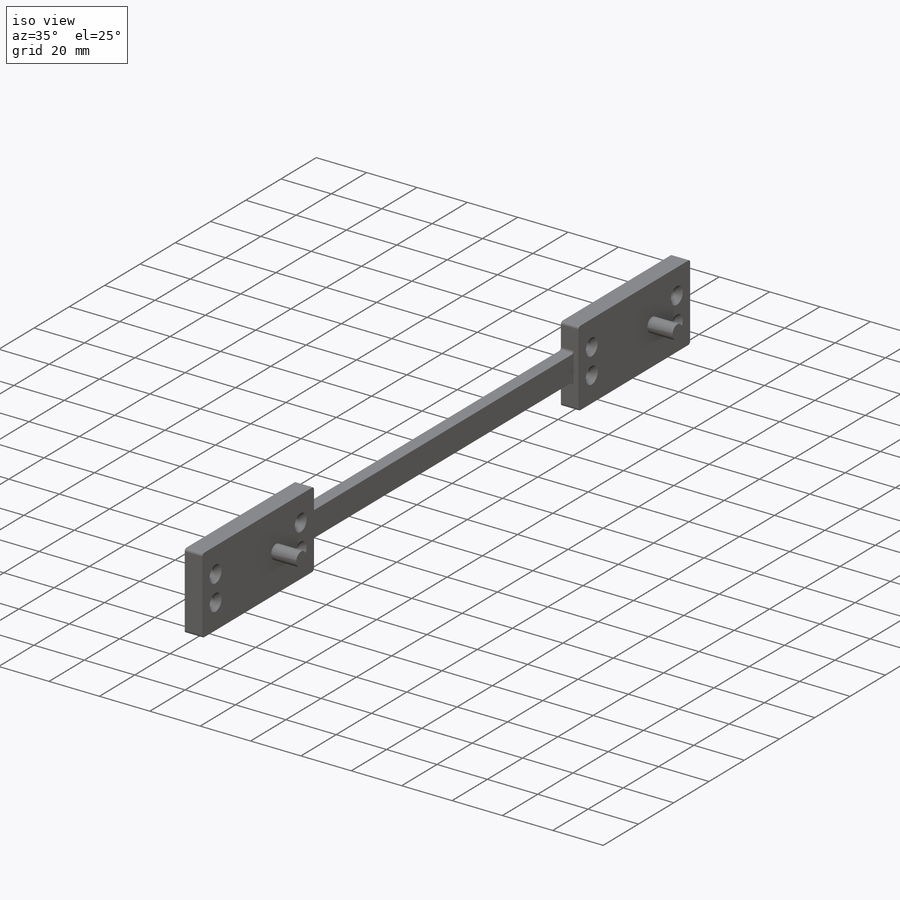
[diagram: iso view]
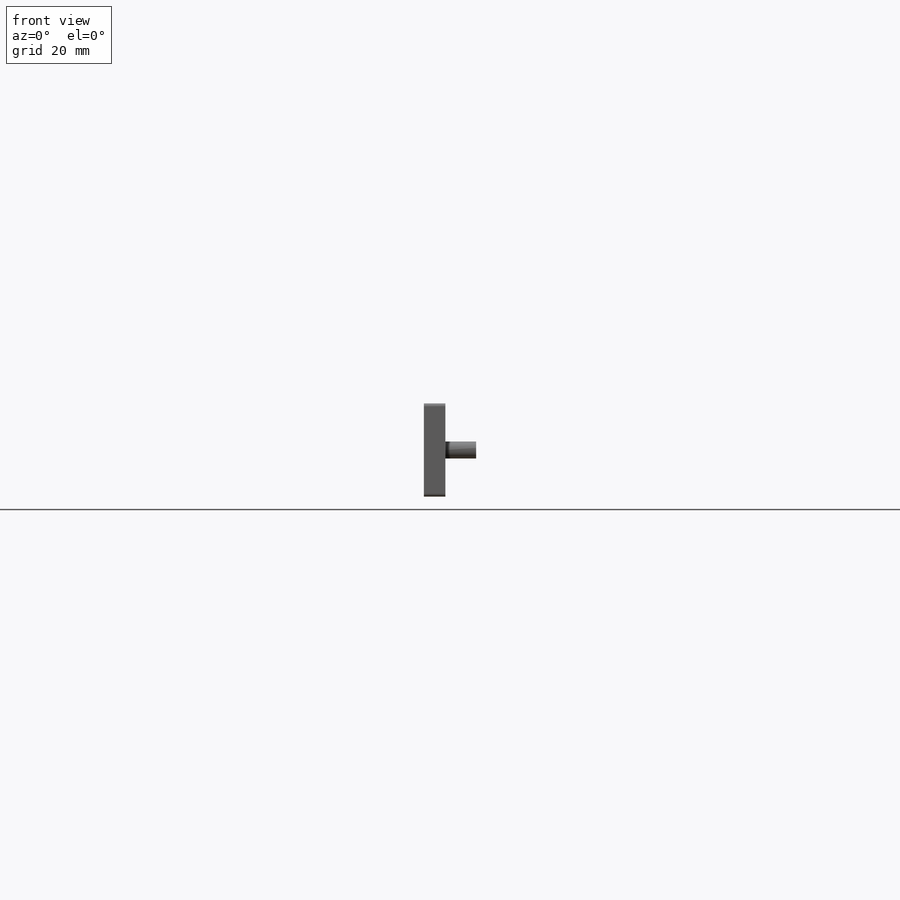
[diagram: front view]
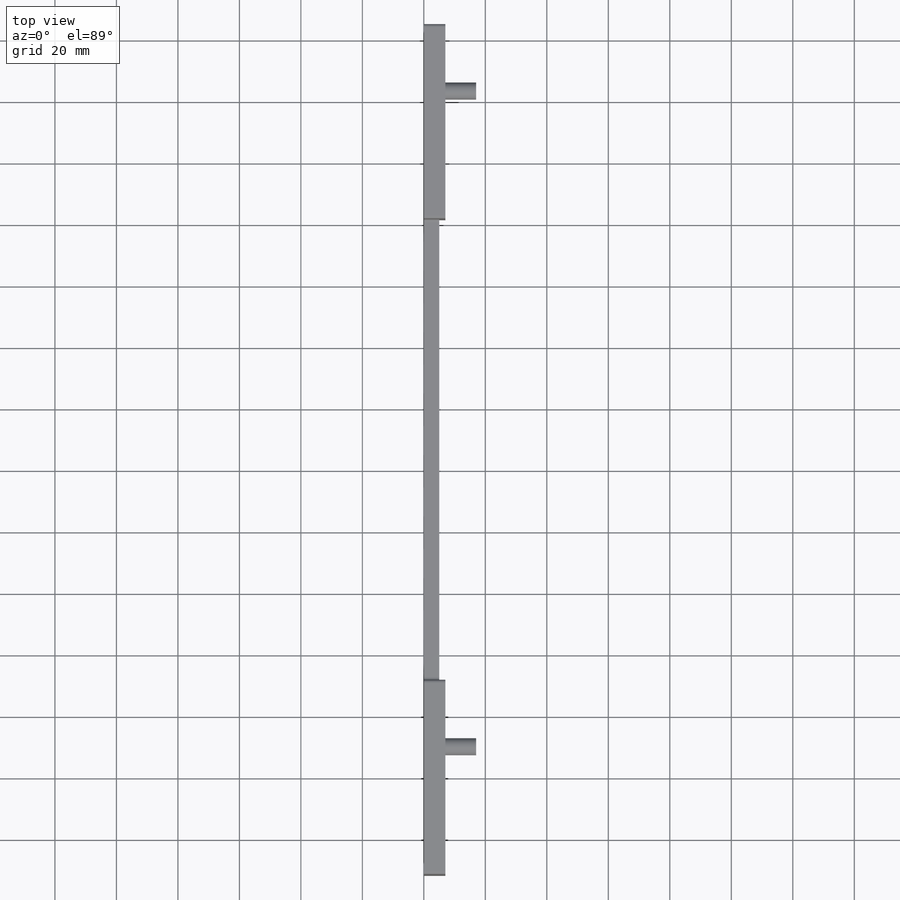
[diagram: top view]
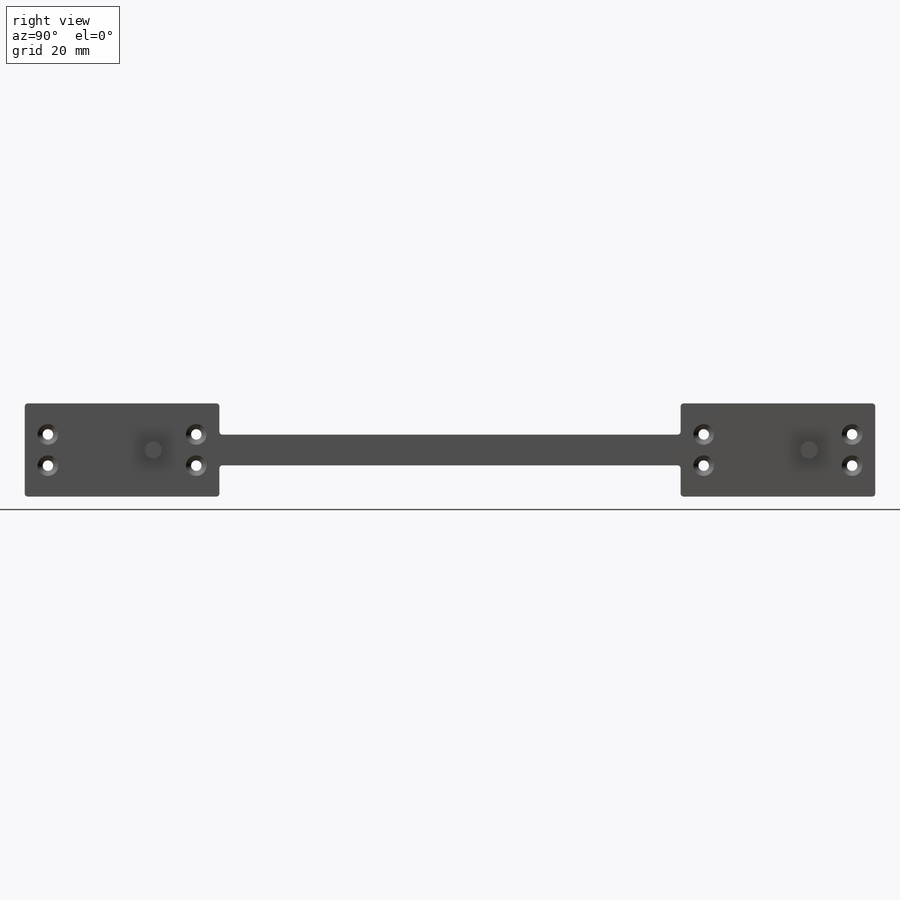
[diagram: right view]
SOLIDWORKS PART (.sldprt)
format: sldprt  version: not decoded by parser v0  size: 357,888 bytes
history: native  units: mm
features: sketch x9, extrude x5, cut_extrude x2, material x1, fillet x1, hole x1 (+12 scaffold rows collapsed)
feature tree (31):
  scaffold x12  (default folders/planes/origin — collapsed)
  material  "Material <not specified>"
  sketch  "Sketch2"  dims[D1=63.3mm D2=30.32mm D3=150.0mm D4=10.0mm]
  extrude  "Boss-Extrude1"  Depth=5mm
  sketch  "Sketch1"  dims[c1.D3=4.52mm c1.D1=20.32mm c1.D2=40.64mm c1.D4=3.81mm c1.D5=4.87mm c1.D6=3.81mm c1.D7=4.87mm c2.D3=2.38mm c2.D4=6.35mm c2.D5=7.0mm c2.D6=6.97mm c3.D5=40.64mm c4.D5=90.0deg c5.D5=11.33mm]
  cut_extrude  "Cut-Extrude3"  [1 undecoded]
  sketch  "Sketch3"  dims[D1=20.32mm D2=40.64mm D3=11.33mm D4=2.38mm D5=6.35mm]
  cut_extrude  "Cut-Extrude5"  [1 undecoded]
  sketch  "Sketch7"
  extrude  "Boss-Extrude2"  Depth=2mm
  sketch  "Sketch10"  dims[D1=5.56mm D2=15.16mm D3=21.53mm]
  extrude  "Boss-Extrude3"  Depth=10mm
  sketch  "Sketch11"
  extrude  "Boss-Extrude4"  Depth=2mm
  sketch  "Sketch12"  dims[D1=5.56mm D2=21.53mm D3=15.16mm]
  extrude  "Boss-Extrude5"  Depth=10mm
  fillet  "Fillet1"  Radius=1mm
  hole  "CSK for M3 SFHCS1"  Diameter=3.4mm Depth=7mm
  sketch  "Sketch14"  dims[D1=7.52mm D2=10.08mm D3=10.08mm D4=7.52mm D5=7.52mm D6=7.52mm]
  sketch  "Sketch13"  dims[hole-wizard template sketch: 55 standard entries collapsed; hole parameters kept: c17.Thru Hole Depth=7.0mm c17.Near C'Sink Dia.=6.72mm c17.D4=~3.666174mm c17.Near C'Sink Angle=90.0deg]
decode coverage: 14 of 18 modeling features carry decoded parameters
note: ~ marks probable driven/reference dimensions
note: 2 parameter values undecoded
note: suppression state not decoded; provenance and decode notes live in map.json
